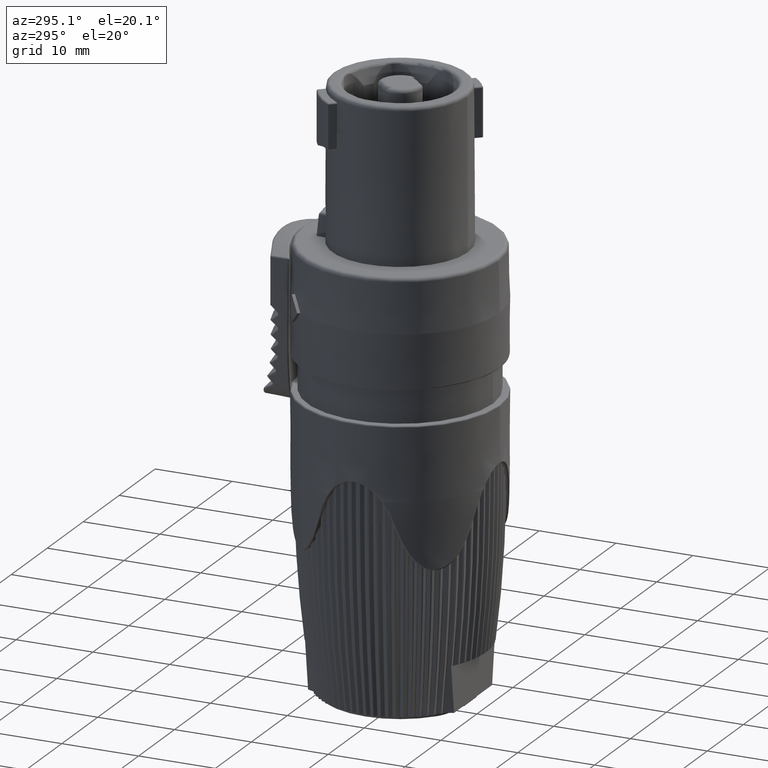
[diagram: clean part render]
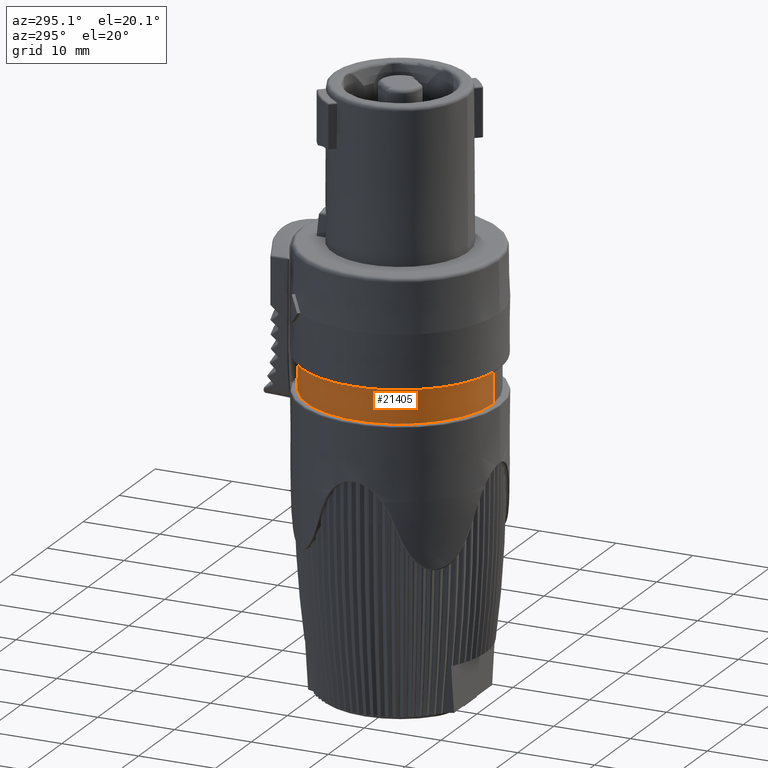
[diagram: same view with one face highlighted and labeled with its STEP entity id]
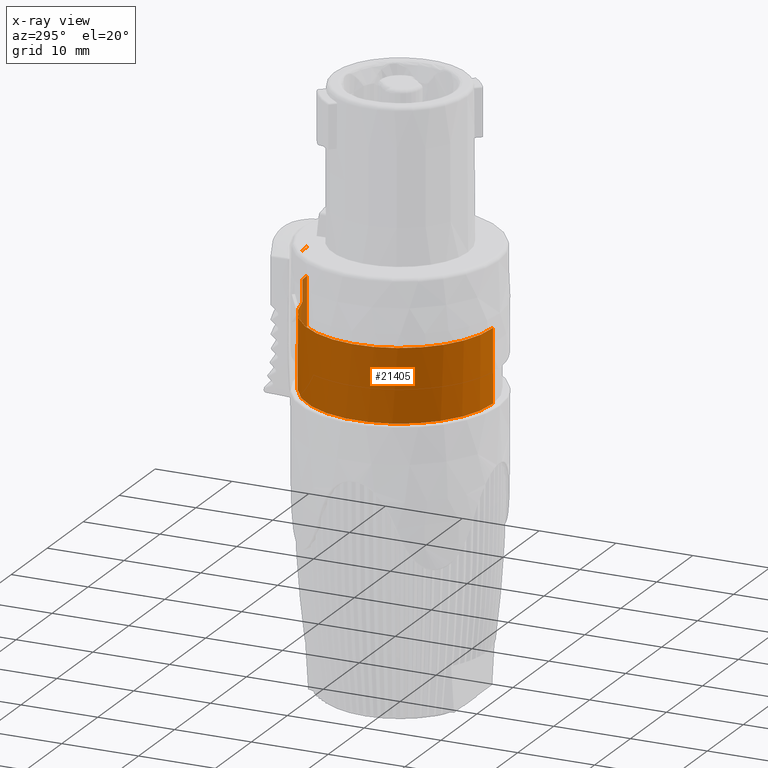
[diagram: x-ray of the same camera — body ghosted, the highlighted face saturated]
A machine part, auxiliary view. The second image highlights one B-rep face of the part: STEP entity #21405.
The next image is the same camera in x-ray: the body ghosted, the highlighted face saturated — about 2% of this face is hidden behind the body in this view.
In plain terms, the highlighted cylindrical surface (partial cylindrical patch) has radius 12.1 mm, axis along (0, 0, -1).
Its self-contained STEP definition (entity closure, byte-faithful):
#2634=CARTESIAN_POINT('',(0.E0,0.E0,1.093094010768E1));
#2635=DIRECTION('',(0.E0,0.E0,-1.E0));
#2636=DIRECTION('',(-1.198347107438E-1,9.927938568006E-1,0.E0));
#2637=AXIS2_PLACEMENT_3D('',#2634,#2635,#2636);
#2639=DIRECTION('',(0.E0,0.E0,1.E0));
#2640=VECTOR('',#2639,1.229783959755E1);
#2641=CARTESIAN_POINT('',(0.E0,1.21E1,-5.E0));
#2642=LINE('',#2641,#2640);
#2643=DIRECTION('',(0.E0,0.E0,1.E0));
#2644=VECTOR('',#2643,2.820133912701E-2);
#2645=CARTESIAN_POINT('',(0.E0,1.21E1,1.093094010768E1));
#2646=LINE('',#2645,#2644);
#2647=DIRECTION('',(0.E0,0.E0,-1.E0));
#2648=VECTOR('',#2647,9.5E0);
#2649=CARTESIAN_POINT('',(0.E0,-1.21E1,4.5E0));
#2650=LINE('',#2649,#2648);
#2672=CARTESIAN_POINT('',(0.E0,0.E0,7.297839597548E0));
#2673=DIRECTION('',(0.E0,0.E0,-1.E0));
#2674=DIRECTION('',(-1.198347107438E-1,9.927938568006E-1,0.E0));
#2675=AXIS2_PLACEMENT_3D('',#2672,#2673,#2674);
#2734=DIRECTION('',(0.E0,0.E0,-1.E0));
#2735=VECTOR('',#2734,3.633100510128E0);
#2736=CARTESIAN_POINT('',(-1.45E0,1.201280566729E1,1.093094010768E1));
#2737=LINE('',#2736,#2735);
#2754=CARTESIAN_POINT('',(0.E0,1.21E1,1.095914144680E1));
#2767=CARTESIAN_POINT('',(-1.6E0,1.199374837155E1,1.102048585309E1));
#2768=CARTESIAN_POINT('',(-1.069788951603E0,1.206448002700E1,1.097964891277E1));
#2769=CARTESIAN_POINT('',(-5.364647039838E-1,1.21E1,1.095914144680E1));
#2770=CARTESIAN_POINT('',(0.E0,1.21E1,1.095914144680E1));
#2785=CARTESIAN_POINT('',(0.E0,0.E0,4.5E0));
#2786=DIRECTION('',(0.E0,0.E0,-1.E0));
#2787=DIRECTION('',(0.E0,-1.E0,0.E0));
#2788=AXIS2_PLACEMENT_3D('',#2785,#2786,#2787);
#2798=DIRECTION('',(0.E0,0.E0,-1.E0));
#2799=VECTOR('',#2798,6.520485853092E0);
#2800=CARTESIAN_POINT('',(-1.6E0,1.199374837155E1,1.102048585309E1));
#2801=LINE('',#2800,#2799);
#6877=CARTESIAN_POINT('',(0.E0,0.E0,-5.E0));
#6878=DIRECTION('',(0.E0,0.E0,-1.E0));
#6879=DIRECTION('',(0.E0,-1.E0,0.E0));
#6880=AXIS2_PLACEMENT_3D('',#6877,#6878,#6879);
#16055=CARTESIAN_POINT('',(0.E0,1.21E1,-5.E0));
#16056=CARTESIAN_POINT('',(0.E0,-1.21E1,-5.E0));
#16057=VERTEX_POINT('',#16055);
#16058=VERTEX_POINT('',#16056);
#17007=CARTESIAN_POINT('',(0.E0,-1.21E1,4.5E0));
#17009=VERTEX_POINT('',#17007);
#17010=CARTESIAN_POINT('',(-1.6E0,1.199374837155E1,4.5E0));
#17011=VERTEX_POINT('',#17010);
#17012=CARTESIAN_POINT('',(-1.6E0,1.199374837155E1,1.102048585309E1));
#17013=VERTEX_POINT('',#17012);
#17016=VERTEX_POINT('',#2754);
#17035=CARTESIAN_POINT('',(0.E0,1.21E1,1.093094010768E1));
#17037=VERTEX_POINT('',#17035);
#17039=CARTESIAN_POINT('',(-1.45E0,1.201280566729E1,1.093094010768E1));
#17040=VERTEX_POINT('',#17039);
#17041=CARTESIAN_POINT('',(-1.45E0,1.201280566729E1,7.297839597548E0));
#17042=VERTEX_POINT('',#17041);
#17049=CARTESIAN_POINT('',(0.E0,1.21E1,7.297839597548E0));
#17050=VERTEX_POINT('',#17049);
#21382=CARTESIAN_POINT('',(0.E0,0.E0,2.15E0));
#21383=DIRECTION('',(0.E0,0.E0,-1.E0));
#21384=DIRECTION('',(0.E0,-1.E0,0.E0));
#21385=AXIS2_PLACEMENT_3D('',#21382,#21383,#21384);
#21386=CYLINDRICAL_SURFACE('',#21385,1.21E1);
#21387=ORIENTED_EDGE('',*,*,#21375,.T.);
#21389=ORIENTED_EDGE('',*,*,#21388,.F.);
#21391=ORIENTED_EDGE('',*,*,#21390,.F.);
#21392=ORIENTED_EDGE('',*,*,#21342,.T.);
#21393=ORIENTED_EDGE('',*,*,#21368,.T.);
#21395=ORIENTED_EDGE('',*,*,#21394,.F.);
#21397=ORIENTED_EDGE('',*,*,#21396,.T.);
#21399=ORIENTED_EDGE('',*,*,#21398,.F.);
#21400=ORIENTED_EDGE('',*,*,#21360,.T.);
#21402=ORIENTED_EDGE('',*,*,#21401,.T.);
#21403=EDGE_LOOP('',(#21387,#21389,#21391,#21392,#21393,#21395,#21397,#21399,
#21400,#21402));
#21404=FACE_OUTER_BOUND('',#21403,.F.);
#21405=ADVANCED_FACE('',(#21404),#21386,.T.);
#2638=CIRCLE('',#2637,1.21E1);
#2676=CIRCLE('',#2675,1.21E1);
#2771=B_SPLINE_CURVE_WITH_KNOTS('',3,(#2767,#2768,#2769,#2770),.UNSPECIFIED.,
.F.,.F.,(4,4),(0.E0,1.E0),.UNSPECIFIED.);
#2789=CIRCLE('',#2788,1.21E1);
#6881=CIRCLE('',#6880,1.21E1);
#21342=EDGE_CURVE('',#17040,#17037,#2638,.T.);
#21360=EDGE_CURVE('',#17009,#16058,#2650,.T.);
#21368=EDGE_CURVE('',#17037,#17016,#2646,.T.);
#21375=EDGE_CURVE('',#16057,#17050,#2642,.T.);
#21388=EDGE_CURVE('',#17042,#17050,#2676,.T.);
#21390=EDGE_CURVE('',#17040,#17042,#2737,.T.);
#21394=EDGE_CURVE('',#17013,#17016,#2771,.T.);
#21396=EDGE_CURVE('',#17013,#17011,#2801,.T.);
#21398=EDGE_CURVE('',#17009,#17011,#2789,.T.);
#21401=EDGE_CURVE('',#16058,#16057,#6881,.T.);